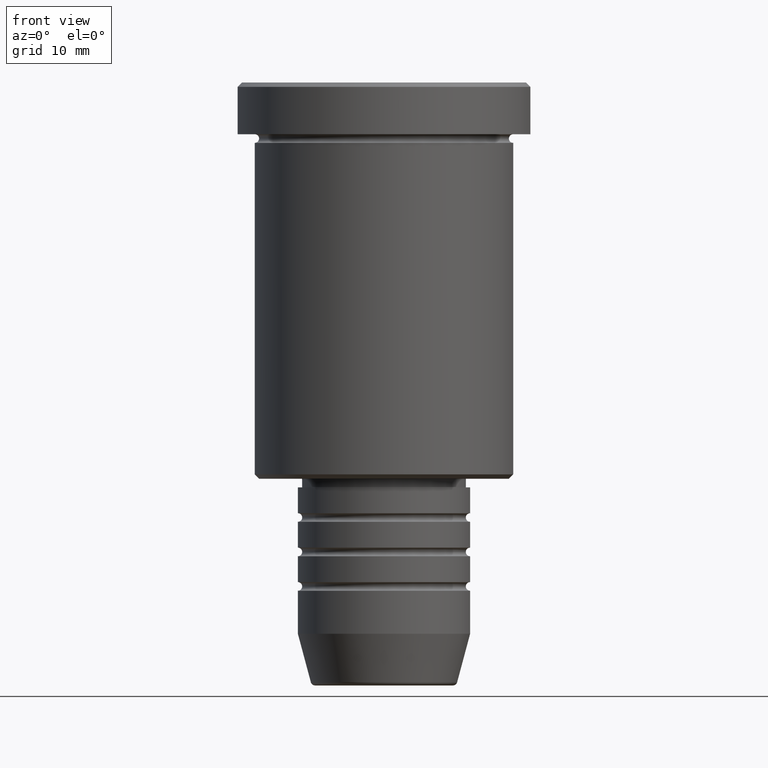
[diagram: clean part render]
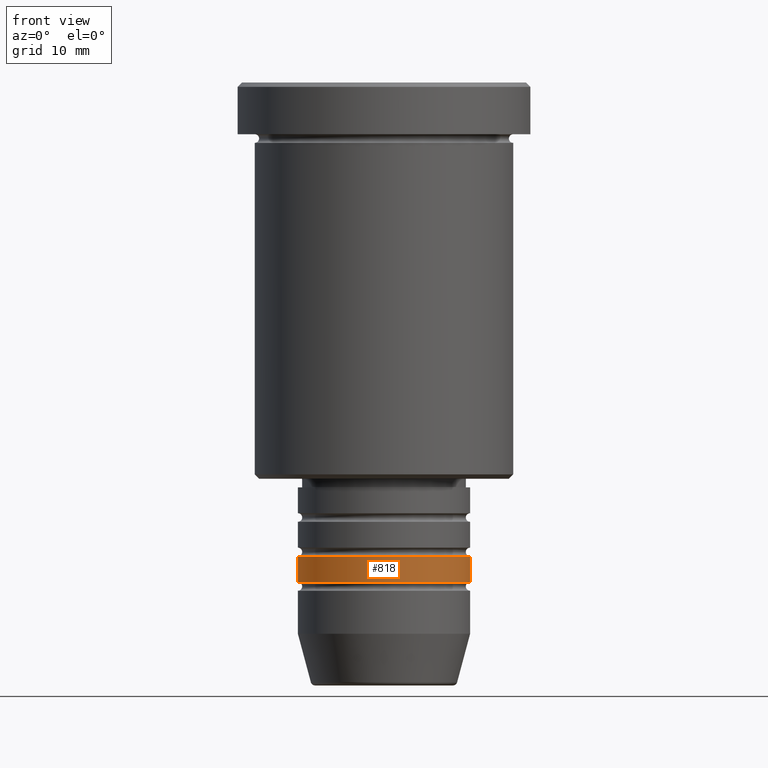
[diagram: same view with one face highlighted and labeled with its STEP entity id]
A machine part, front view. The second image highlights one B-rep face of the part: STEP entity #818.
In plain terms, the highlighted cylindrical surface (partial cylindrical patch) has radius 10 mm, axis along (-0, -0, 1).
Its self-contained STEP definition (entity closure, byte-faithful):
#9 = DIRECTION ( 'NONE',  ( 1.000000000000000000, 0.000000000000000000, 0.000000000000000000 ) ) ;
#48 = ORIENTED_EDGE ( 'NONE', *, *, #418, .T. ) ;
#119 = VERTEX_POINT ( 'NONE', #251 ) ;
#189 = CARTESIAN_POINT ( 'NONE',  ( 0.000000000000000000, 0.000000000000000000, -54.99999999999999289 ) ) ;
#205 = AXIS2_PLACEMENT_3D ( 'NONE', #667, #222, #473 ) ;
#222 = DIRECTION ( 'NONE',  ( -0.000000000000000000, -0.000000000000000000, 1.000000000000000000 ) ) ;
#251 = CARTESIAN_POINT ( 'NONE',  ( -10.00000000000000178, 1.224646799147353454E-15, -57.99999999999998579 ) ) ;
#268 = DIRECTION ( 'NONE',  ( 1.000000000000000000, 0.000000000000000000, 0.000000000000000000 ) ) ;
#293 = ORIENTED_EDGE ( 'NONE', *, *, #1074, .T. ) ;
#297 = VERTEX_POINT ( 'NONE', #376 ) ;
#300 = FACE_OUTER_BOUND ( 'NONE', #877, .T. ) ;
#327 = VERTEX_POINT ( 'NONE', #1034 ) ;
#341 = DIRECTION ( 'NONE',  ( -0.000000000000000000, -0.000000000000000000, 1.000000000000000000 ) ) ;
#346 = CARTESIAN_POINT ( 'NONE',  ( 10.00000000000000178, 0.000000000000000000, 0.000000000000000000 ) ) ;
#375 = DIRECTION ( 'NONE',  ( -0.000000000000000000, -0.000000000000000000, 1.000000000000000000 ) ) ;
#376 = CARTESIAN_POINT ( 'NONE',  ( 10.00000000000000000, 0.000000000000000000, -54.99999999999999289 ) ) ;
#415 = CARTESIAN_POINT ( 'NONE',  ( -10.00000000000000178, 1.224646799147353454E-15, 0.000000000000000000 ) ) ;
#418 = EDGE_CURVE ( 'NONE', #327, #297, #513, .T. ) ;
#449 = CARTESIAN_POINT ( 'NONE',  ( 0.000000000000000000, 0.000000000000000000, -57.99999999999998579 ) ) ;
#473 = DIRECTION ( 'NONE',  ( 1.000000000000000000, 0.000000000000000000, 0.000000000000000000 ) ) ;
#500 = CIRCLE ( 'NONE', #652, 10.00000000000000000 ) ;
#511 = VERTEX_POINT ( 'NONE', #1140 ) ;
#513 = LINE ( 'NONE', #346, #849 ) ;
#625 = EDGE_CURVE ( 'NONE', #511, #297, #500, .T. ) ;
#640 = ORIENTED_EDGE ( 'NONE', *, *, #899, .F. ) ;
#652 = AXIS2_PLACEMENT_3D ( 'NONE', #189, #375, #268 ) ;
#667 = CARTESIAN_POINT ( 'NONE',  ( 0.000000000000000000, 0.000000000000000000, 0.000000000000000000 ) ) ;
#818 = ADVANCED_FACE ( 'NONE', ( #300 ), #1138, .T. ) ;
#849 = VECTOR ( 'NONE', #341, 1000.000000000000000 ) ;
#867 = LINE ( 'NONE', #415, #967 ) ;
#877 = EDGE_LOOP ( 'NONE', ( #640, #293, #48, #1132 ) ) ;
#899 = EDGE_CURVE ( 'NONE', #119, #511, #867, .T. ) ;
#916 = DIRECTION ( 'NONE',  ( -0.000000000000000000, -0.000000000000000000, 1.000000000000000000 ) ) ;
#967 = VECTOR ( 'NONE', #1165, 1000.000000000000000 ) ;
#992 = CIRCLE ( 'NONE', #1109, 10.00000000000000178 ) ;
#1034 = CARTESIAN_POINT ( 'NONE',  ( 10.00000000000000178, 0.000000000000000000, -57.99999999999998579 ) ) ;
#1074 = EDGE_CURVE ( 'NONE', #119, #327, #992, .T. ) ;
#1109 = AXIS2_PLACEMENT_3D ( 'NONE', #449, #916, #9 ) ;
#1132 = ORIENTED_EDGE ( 'NONE', *, *, #625, .F. ) ;
#1138 = CYLINDRICAL_SURFACE ( 'NONE', #205, 10.00000000000000178 ) ;
#1140 = CARTESIAN_POINT ( 'NONE',  ( -10.00000000000000000, 1.224646799147353256E-15, -54.99999999999999289 ) ) ;
#1165 = DIRECTION ( 'NONE',  ( -0.000000000000000000, -0.000000000000000000, 1.000000000000000000 ) ) ;